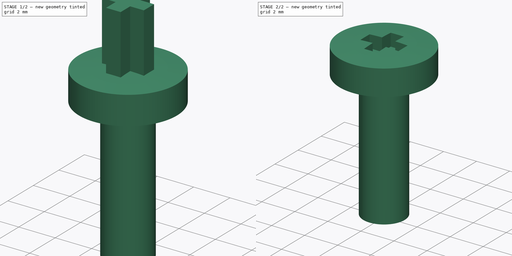
[diagram: build sequence overview — one tinted view per stage of 2, left to right]
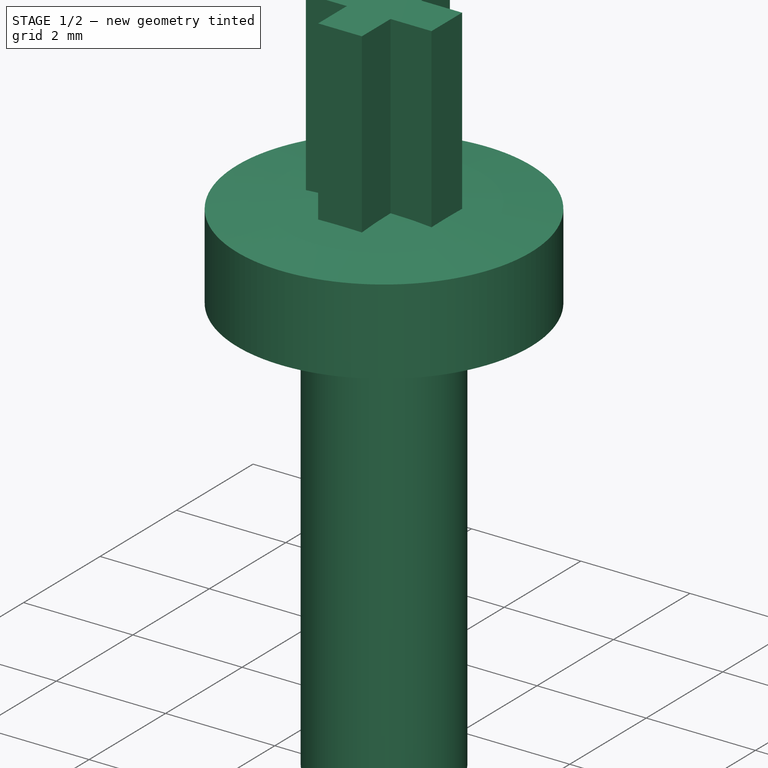
[diagram: stage 1 of 2 — iso view after this stage's code; geometry added in this stage tinted green]
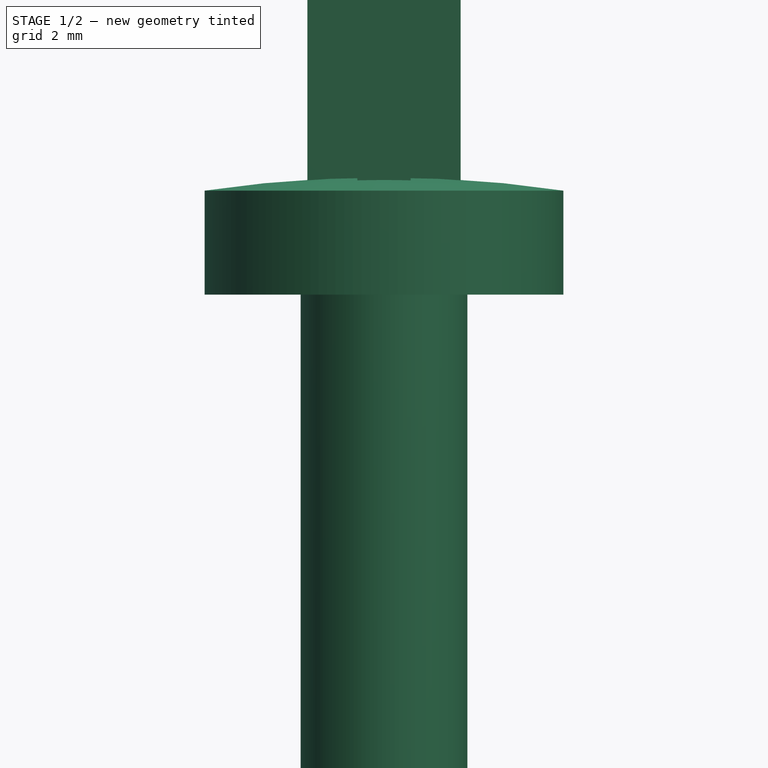
[diagram: stage 1 of 2 — front view after this stage's code; geometry added in this stage tinted green]
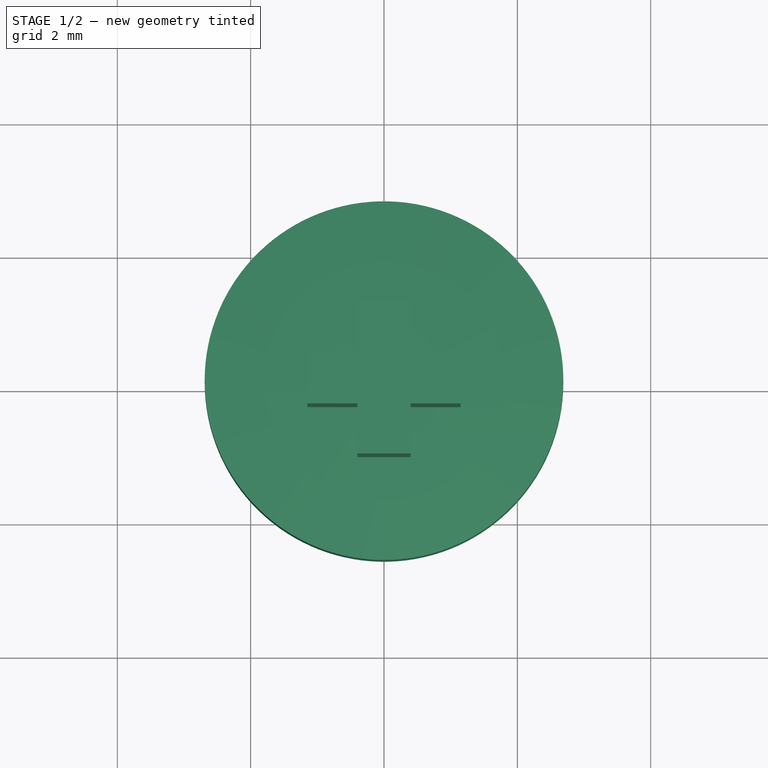
[diagram: stage 1 of 2 — top view after this stage's code; geometry added in this stage tinted green]
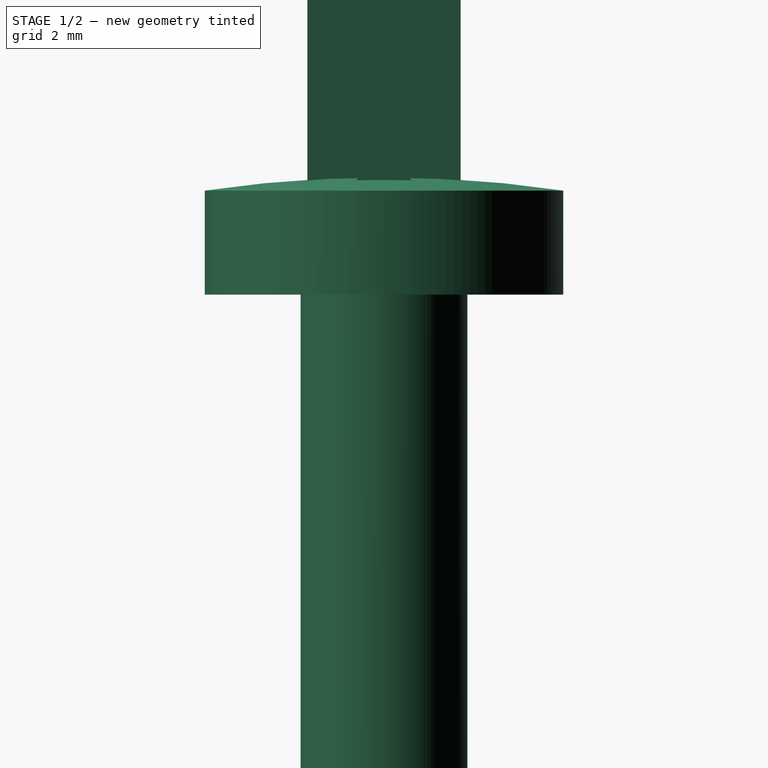
[diagram: stage 1 of 2 — right view after this stage's code; geometry added in this stage tinted green]
FCSTD DOCUMENT  (FreeCAD 0.14R3702 (Git))
Label: Futaba3003-shaft-bolt
License: CC-BY 3.0
LicenseURL: http://creativecommons.org/licenses/by/3.0/
objects: Sketcher::SketchObject×2, PartDesign::Revolution×1, PartDesign::Pad×1, Part::Cut×1
note: 7 computed .brp shape members not serialized (recipe doc carries the construction recipe); baked Part::Feature solids carry a one-line shape summary decoded from their .brp

FEATURE [Sketcher::SketchObject] Sketch  label="bolt-sketch"
  Placement = pos=(0,0,0) rot=(-1,0,0;4.71239rad)
  sketch-geometry (6):
    g0: LineSegment StartX=0 StartY=0 StartZ=0 EndX=1.25 EndY=0 EndZ=0
    g1: LineSegment StartX=1.25 StartY=0 StartZ=0 EndX=1.25 EndY=7.64 EndZ=0
    g2: LineSegment StartX=1.25 StartY=7.64 StartZ=0 EndX=2.69 EndY=7.64 EndZ=0
    g3: LineSegment StartX=2.69 StartY=7.64 StartZ=0 EndX=2.69 EndY=9.2 EndZ=0
    g4: LineSegment StartX=0 StartY=0 StartZ=0 EndX=0 EndY=9.4 EndZ=0
    g5: ArcOfCircle CenterX=0 CenterY=-8.79025 CenterZ=0 NormalX=0 NormalY=0 NormalZ=1 Radius=18.1902 StartAngle=1.42237 EndAngle=1.5708
  constraints (18):
    c: Horizontal(g0)
    c: Coincident(g0,g1)
    c: Vertical(g1)
    c: Coincident(g1,g2)
    c: Horizontal(g2)
    c: Coincident(g2,g3)
    c: Vertical(g3)
    c: Coincident(g4,g0)
    c: Vertical(g4)
    c: Coincident(g0,g-1)
    c: DistanceY(g4) = 9.4
    c: Coincident(g5,g4)
    c: Coincident(g5,g3)
    c: DistanceY(g-1,g3) = 9.2
    c: DistanceY(g3) = 1.56
    c: DistanceX(g0) = 1.25
    c: DistanceX(g-1,g3) = 2.69
    c: PointOnObject(g5,g-2)
FEATURE [PartDesign::Revolution] Revolution  label="shaft-bolt"
  Angle = 360
  Axis = (0,0,1)
  Base = (0,0,0)
  Placement = pos=(0,0,0) rot=(-1,0,0;4.71239rad)
  ReferenceAxis = -> Sketch [V_Axis]
  Reversed = true
  Sketch = -> Sketch
FEATURE [Sketcher::SketchObject] Sketch001  label="cross-sketch"
  Placement = pos=(0,0,8.6) rot=(0,0,1;0rad)
  sketch-geometry (12):
    g0: LineSegment StartX=-1.15 StartY=0.4 StartZ=0 EndX=-0.4 EndY=0.4 EndZ=0
    g1: LineSegment StartX=1.15 StartY=0.4 StartZ=0 EndX=1.15 EndY=-0.4 EndZ=0
    g2: LineSegment StartX=1.15 StartY=-0.4 StartZ=0 EndX=0.4 EndY=-0.4 EndZ=0
    g3: LineSegment StartX=-1.15 StartY=-0.4 StartZ=0 EndX=-1.15 EndY=0.4 EndZ=0
    g4: LineSegment StartX=-0.4 StartY=1.15 StartZ=0 EndX=0.4 EndY=1.15 EndZ=0
    g5: LineSegment StartX=0.4 StartY=1.15 StartZ=0 EndX=0.4 EndY=0.4 EndZ=0
    g6: LineSegment StartX=0.4 StartY=-1.15 StartZ=0 EndX=-0.4 EndY=-1.15 EndZ=0
    g7: LineSegment StartX=-0.4 StartY=-1.15 StartZ=0 EndX=-0.4 EndY=-0.4 EndZ=0
    g8: LineSegment StartX=-0.4 StartY=0.4 StartZ=0 EndX=-0.4 EndY=1.15 EndZ=0
    g9: LineSegment StartX=0.4 StartY=-0.4 StartZ=0 EndX=0.4 EndY=-1.15 EndZ=0
    g10: LineSegment StartX=0.4 StartY=0.4 StartZ=0 EndX=1.15 EndY=0.4 EndZ=0
    g11: LineSegment StartX=-0.4 StartY=-0.4 StartZ=0 EndX=-1.15 EndY=-0.4 EndZ=0
  constraints (30):
    c: Coincident(g10,g1)
    c: Coincident(g1,g2)
    c: Coincident(g11,g3)
    c: Coincident(g3,g0)
    c: Horizontal(g0)
    c: Horizontal(g2)
    c: Vertical(g1)
    c: Vertical(g3)
    c: Symmetric(g0,g1,g-1)
    c: Coincident(g4,g5)
    c: Coincident(g9,g6)
    c: Coincident(g6,g7)
    c: Coincident(g8,g4)
    c: Horizontal(g4)
    c: Horizontal(g6)
    c: Vertical(g5)
    c: Vertical(g7)
    c: Symmetric(g4,g9,g-1)
    c: Equal(g4,g3)
    c: Equal(g7,g0)
    c: DistanceX(g0,g10) = 2.3
    c: DistanceX(g4) = 0.8
    c: Tangent(g7,g8)
    c: Tangent(g5,g9)
    c: Coincident(g0,g8)
    c: Coincident(g10,g5)
    c: Tangent(g0,g10)
    c: Coincident(g2,g9)
    c: Coincident(g11,g7)
    c: Tangent(g2,g11)
FEATURE [PartDesign::Pad] Pad  label="cross"
  Length = 4
  Length2 = 100
  Placement = pos=(0,0,8.6) rot=(0,0,1;0rad)
  Sketch = -> Sketch001
  Type = 0
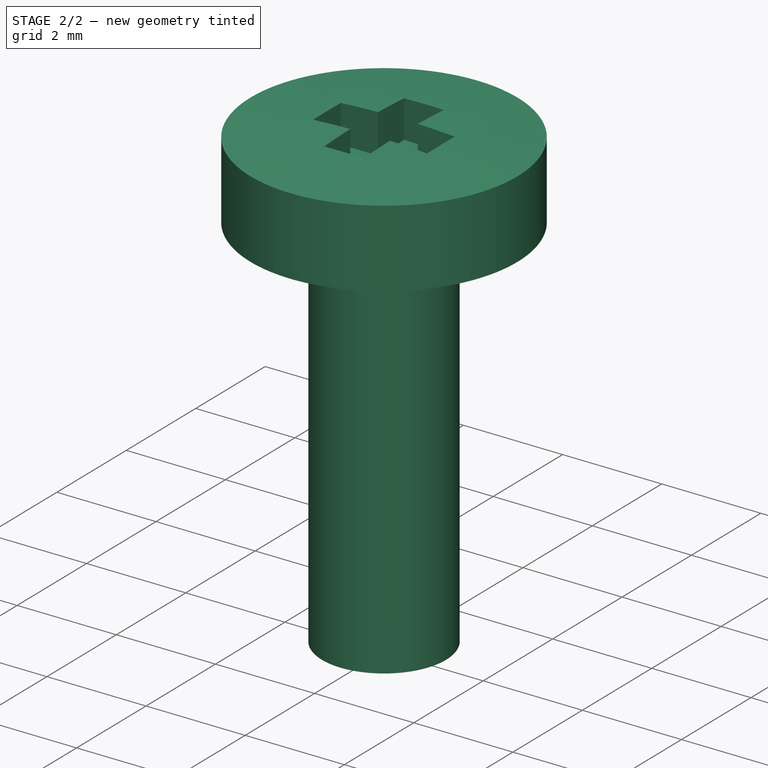
[diagram: stage 2 of 2 — iso view after this stage's code; geometry added in this stage tinted green]
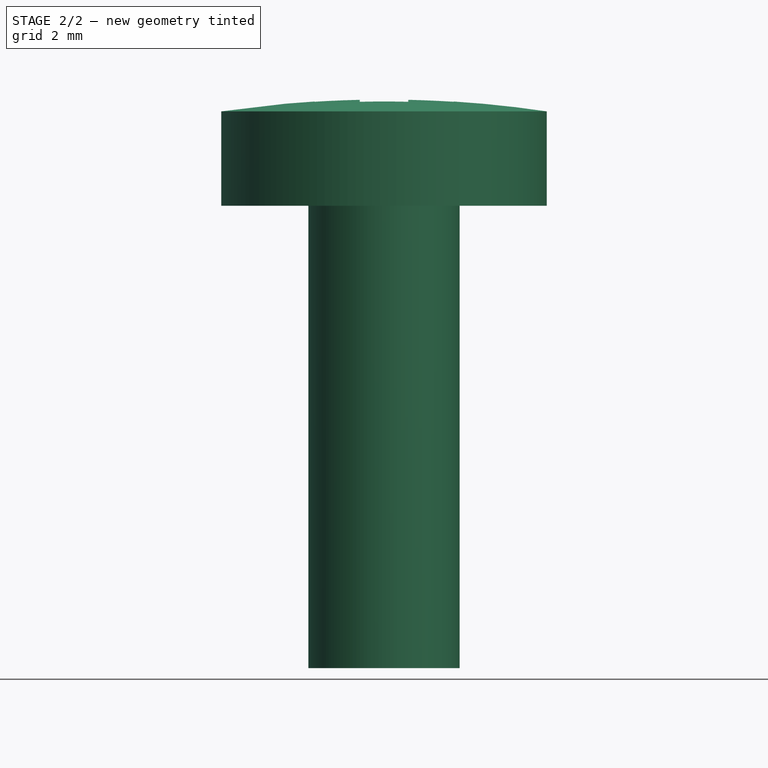
[diagram: stage 2 of 2 — front view after this stage's code; geometry added in this stage tinted green]
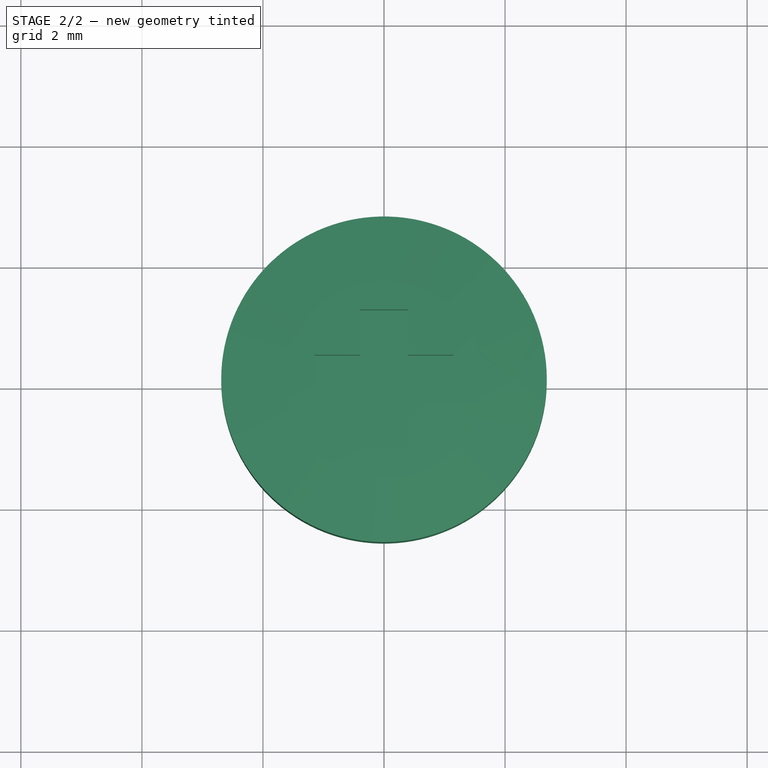
[diagram: stage 2 of 2 — top view after this stage's code; geometry added in this stage tinted green]
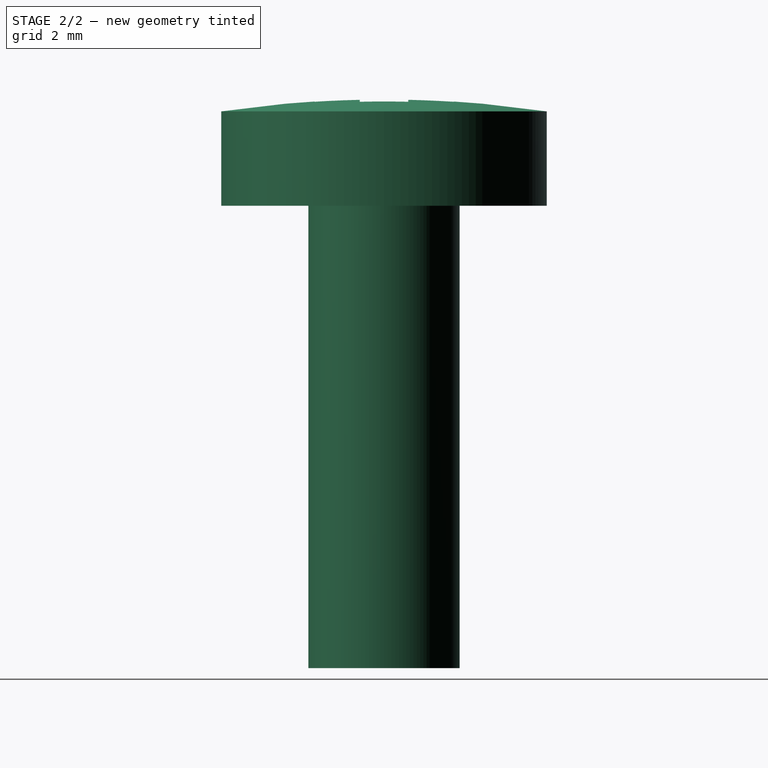
[diagram: stage 2 of 2 — right view after this stage's code; geometry added in this stage tinted green]
FEATURE [Part::Cut] Cut  label="Shaft-bolt"
  Base = -> Revolution
  Tool = -> Pad
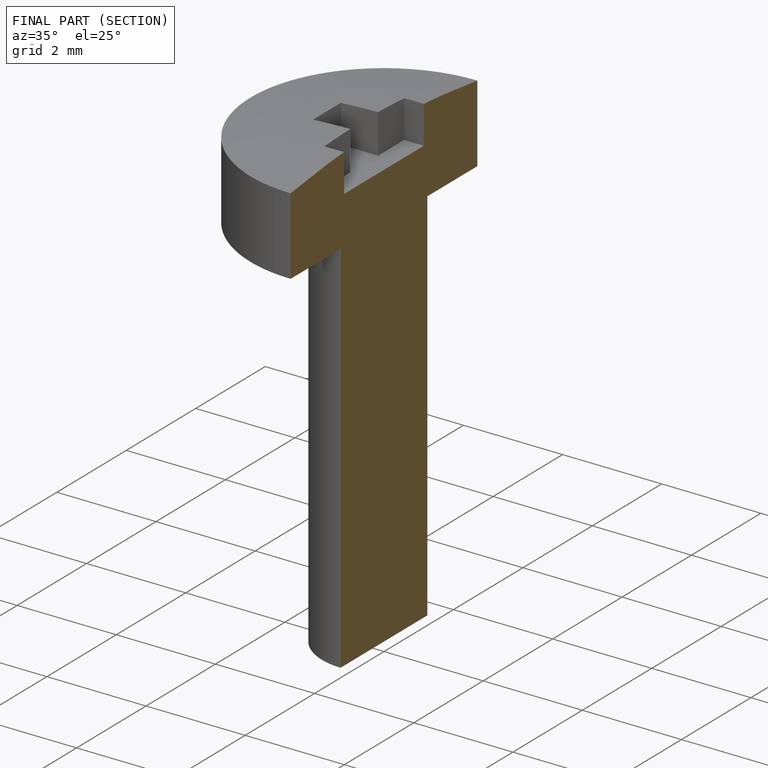
[diagram: finished part — half-section view (interior)]
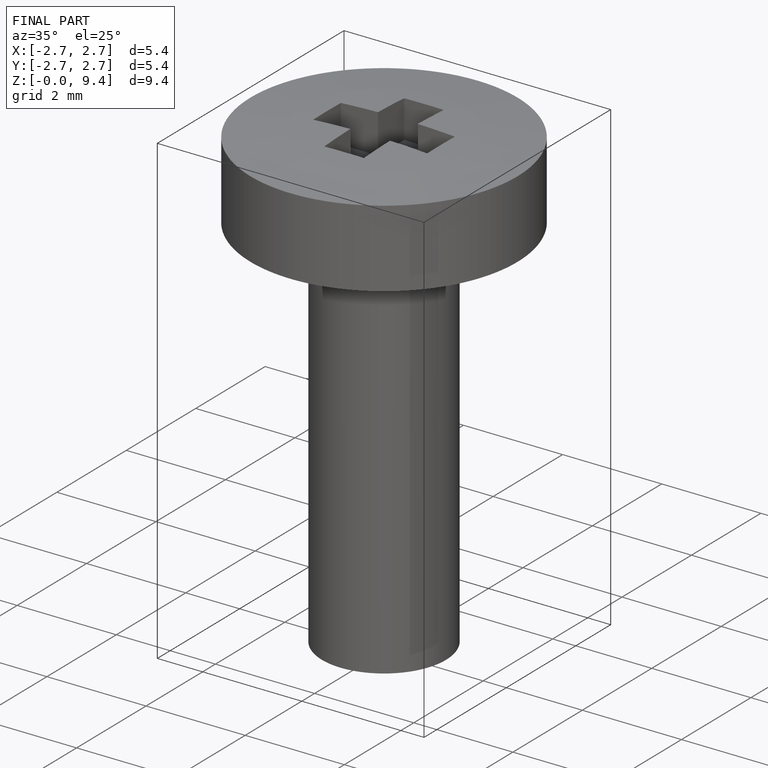
[diagram: finished part — iso view with bounding-box wireframe]
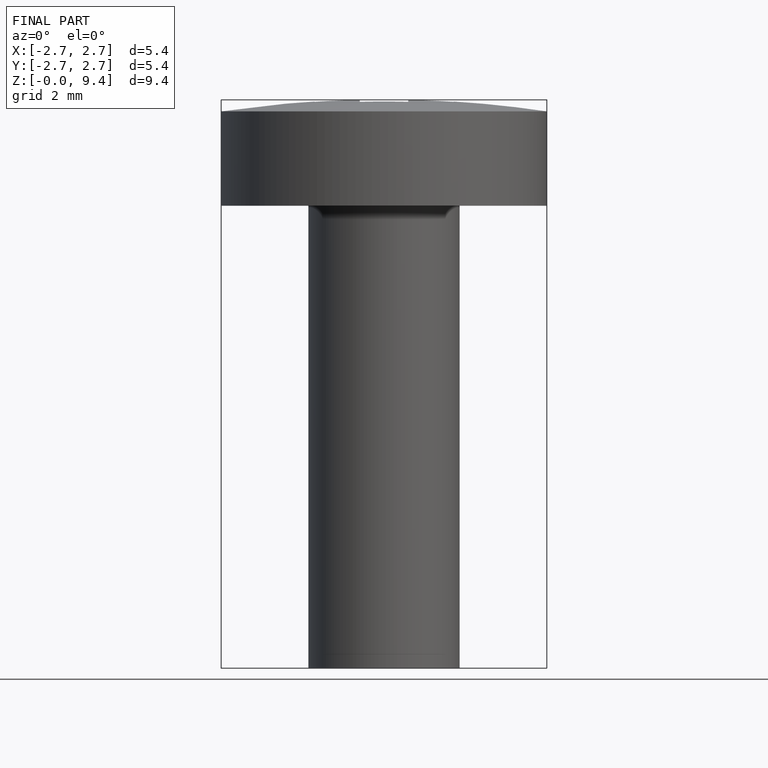
[diagram: finished part — front view with bounding-box wireframe]
